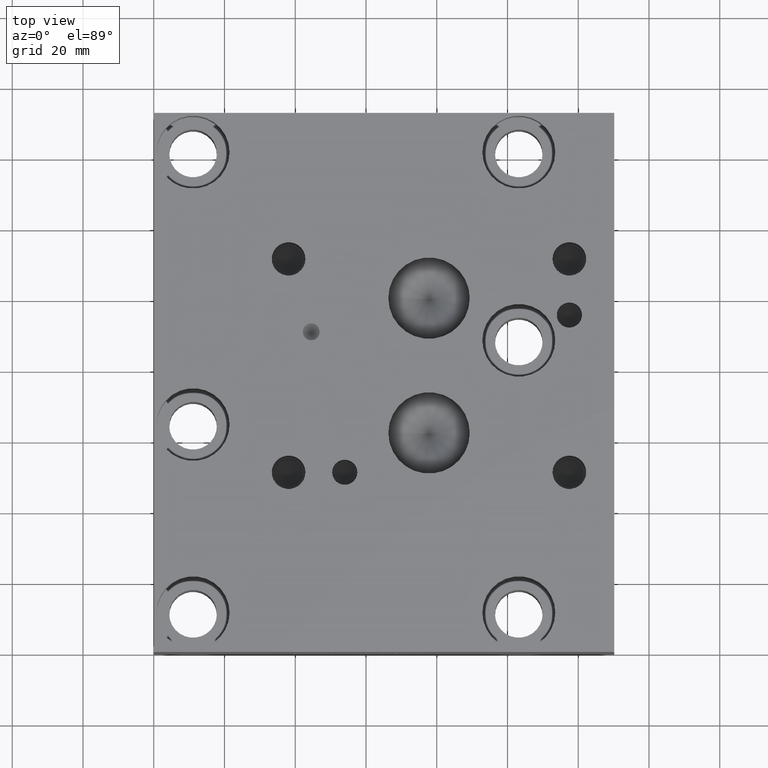
[diagram: clean part render]
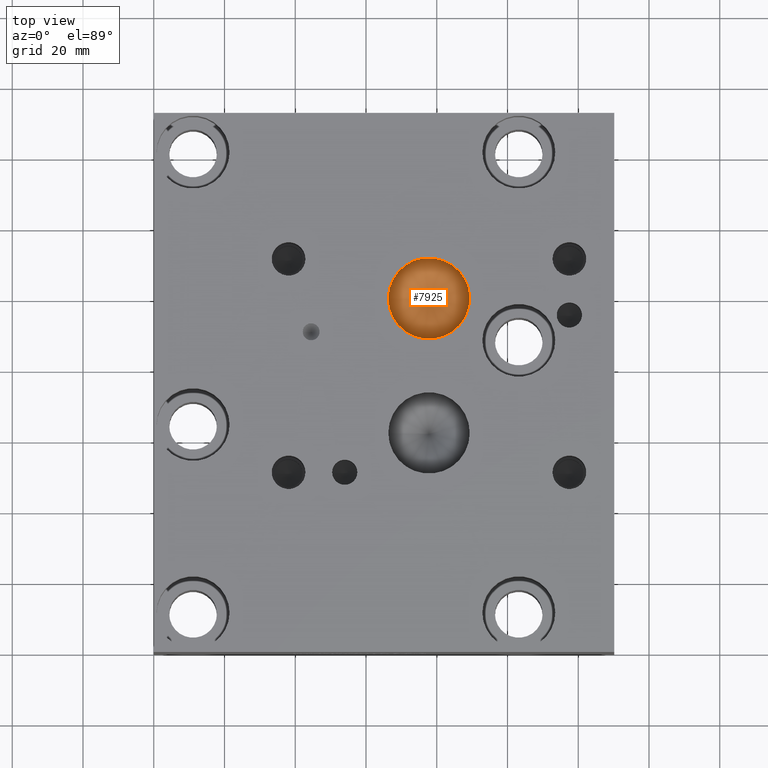
[diagram: same view with one face highlighted and labeled with its STEP entity id]
A machine part, top view. The second image highlights one B-rep face of the part: STEP entity #7925.
In plain terms, the highlighted conical surface has half-angle 60 deg.
Its self-contained STEP definition (entity closure, byte-faithful):
#174=CIRCLE('',#8368,11.5062);
#175=CIRCLE('',#8369,11.5062);
#233=CONICAL_SURFACE('',#8367,5.7531,1.0471975511966);
#983=FACE_OUTER_BOUND('',#1427,.T.);
#1427=EDGE_LOOP('',(#6824,#6825,#6826,#6827));
#2199=LINE('',#13675,#2936);
#2936=VECTOR('',#9952,5.7531);
#3668=VERTEX_POINT('',#13671);
#3669=VERTEX_POINT('',#13672);
#3670=VERTEX_POINT('',#13674);
#4749=EDGE_CURVE('',#3668,#3669,#174,.T.);
#4750=EDGE_CURVE('',#3669,#3670,#2199,.T.);
#4751=EDGE_CURVE('',#3669,#3668,#175,.T.);
#6824=ORIENTED_EDGE('',*,*,#4749,.T.);
#6825=ORIENTED_EDGE('',*,*,#4750,.T.);
#6826=ORIENTED_EDGE('',*,*,#4750,.F.);
#6827=ORIENTED_EDGE('',*,*,#4751,.T.);
#7925=ADVANCED_FACE('',(#983),#233,.F.);
#8367=AXIS2_PLACEMENT_3D('',#13670,#9948,#9949);
#8368=AXIS2_PLACEMENT_3D('',#13673,#9950,#9951);
#8369=AXIS2_PLACEMENT_3D('',#13676,#9953,#9954);
#9948=DIRECTION('center_axis',(0.,0.,1.));
#9949=DIRECTION('ref_axis',(1.,0.,0.));
#9950=DIRECTION('center_axis',(0.,0.,1.));
#9951=DIRECTION('ref_axis',(1.,0.,0.));
#9952=DIRECTION('',(0.866025403784439,1.06057523872491E-16,-0.5));
#9953=DIRECTION('center_axis',(0.,0.,1.));
#9954=DIRECTION('ref_axis',(1.,0.,0.));
#13670=CARTESIAN_POINT('Origin',(77.8002,100.0125,40.8353361663252));
#13671=CARTESIAN_POINT('',(89.3064,100.0125,44.15689));
#13672=CARTESIAN_POINT('',(66.294,100.0125,44.15689));
#13673=CARTESIAN_POINT('Origin',(77.8002,100.0125,44.15689));
#13674=CARTESIAN_POINT('',(77.8002,100.0125,37.5137823326503));
#13675=CARTESIAN_POINT('',(72.0471,100.0125,40.8353361663252));
#13676=CARTESIAN_POINT('Origin',(77.8002,100.0125,44.15689));